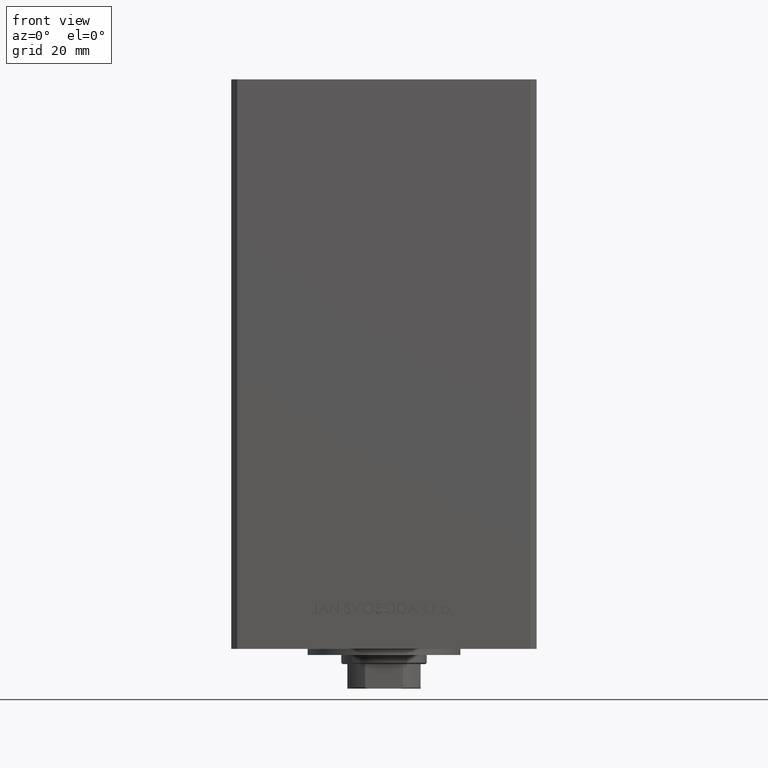
[diagram: clean part render]
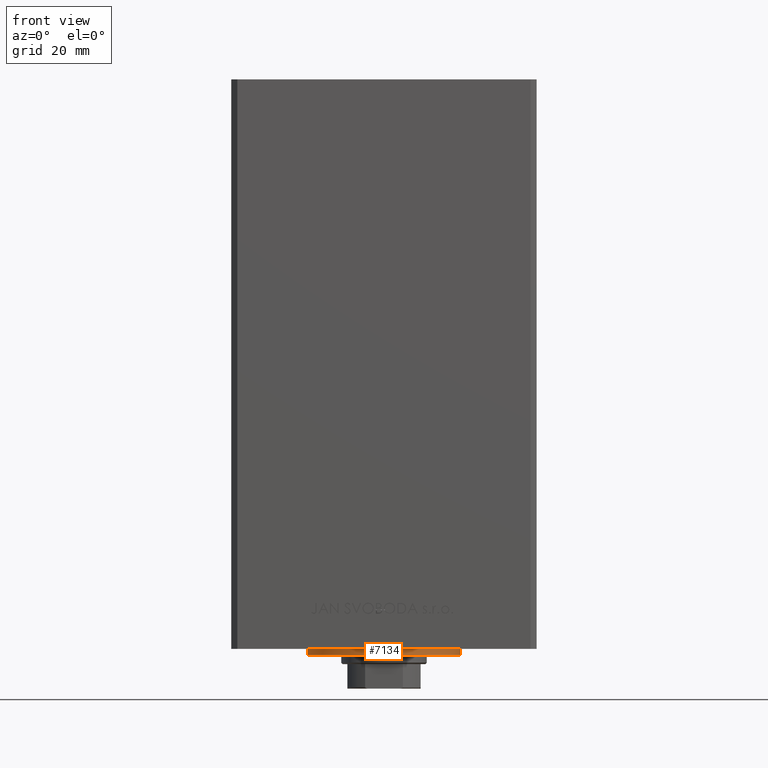
[diagram: same view with one face highlighted and labeled with its STEP entity id]
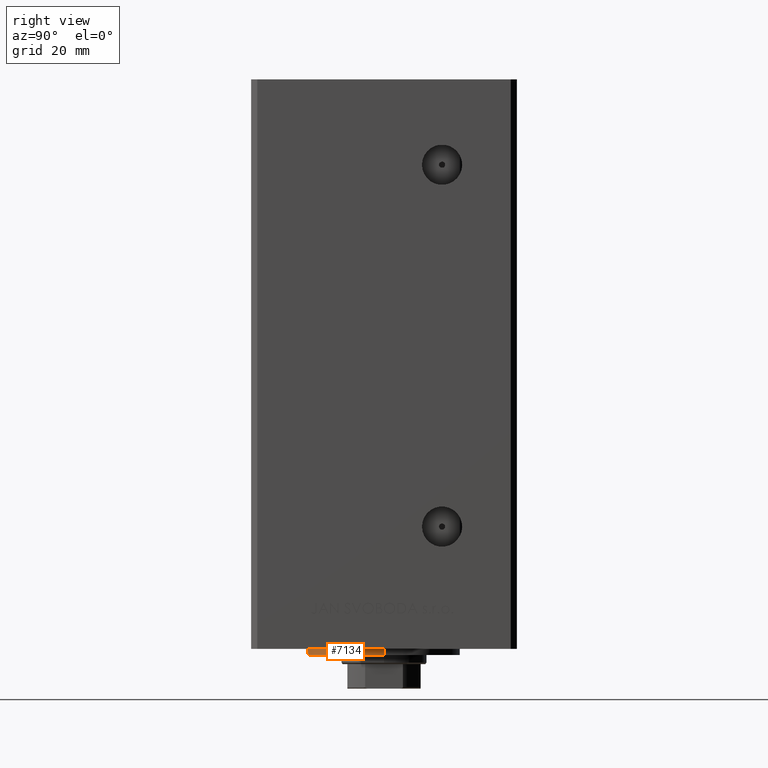
[diagram: same view with one face highlighted and labeled with its STEP entity id]
A machine part, front view. The second image highlights one B-rep face of the part: STEP entity #7134.
A second angle (right view) of the same face is appended — the face is thin or edge-on in the first view.
In plain terms, the highlighted cylindrical surface (partial cylindrical patch) has radius 25 mm, axis along (0, 0, 1).
Its self-contained STEP definition (entity closure, byte-faithful):
#956 = VERTEX_POINT ( 'NONE', #4636 ) ;
#1994 = EDGE_CURVE ( 'NONE', #10718, #15839, #9856, .T. ) ;
#2986 = EDGE_CURVE ( 'NONE', #25677, #18470, #38441, .T. ) ;
#3346 = EDGE_CURVE ( 'NONE', #14720, #10718, #44883, .T. ) ;
#3436 = EDGE_CURVE ( 'NONE', #956, #39834, #7996, .T. ) ;
#4636 = CARTESIAN_POINT ( 'NONE',  ( 0.000000000000000000, -25.00000000000000000, 0.000000000000000000 ) ) ;
#5546 = DIRECTION ( 'NONE',  ( -0.000000000000000000, -0.000000000000000000, -1.000000000000000000 ) ) ;
#7134 = ADVANCED_FACE ( 'NONE', ( #45893 ), #42364, .T. ) ;
#7996 = CIRCLE ( 'NONE', #34424, 25.00000000000000000 ) ;
#9300 = LINE ( 'NONE', #39916, #28744 ) ;
#9856 = LINE ( 'NONE', #48235, #43219 ) ;
#10266 = CIRCLE ( 'NONE', #28702, 25.00000000000000000 ) ;
#10656 = CARTESIAN_POINT ( 'NONE',  ( 0.000000000000000000, -6.938893903907228378E-15, 0.000000000000000000 ) ) ;
#10718 = VERTEX_POINT ( 'NONE', #33321 ) ;
#10727 = DIRECTION ( 'NONE',  ( 0.000000000000000000, 0.000000000000000000, 1.000000000000000000 ) ) ;
#11138 = DIRECTION ( 'NONE',  ( 1.000000000000000000, 0.000000000000000000, 0.000000000000000000 ) ) ;
#11193 = AXIS2_PLACEMENT_3D ( 'NONE', #10656, #33972, #11138 ) ;
#11331 = DIRECTION ( 'NONE',  ( 0.000000000000000000, 0.000000000000000000, 1.000000000000000000 ) ) ;
#14331 = ORIENTED_EDGE ( 'NONE', *, *, #3346, .F. ) ;
#14552 = DIRECTION ( 'NONE',  ( -1.000000000000000000, 0.000000000000000000, 0.000000000000000000 ) ) ;
#14720 = VERTEX_POINT ( 'NONE', #35044 ) ;
#15839 = VERTEX_POINT ( 'NONE', #26072 ) ;
#16675 = CIRCLE ( 'NONE', #22293, 25.00000000000000000 ) ;
#17391 = DIRECTION ( 'NONE',  ( -0.000000000000000000, -0.000000000000000000, -1.000000000000000000 ) ) ;
#18159 = ORIENTED_EDGE ( 'NONE', *, *, #3436, .T. ) ;
#18470 = VERTEX_POINT ( 'NONE', #32462 ) ;
#18510 = CARTESIAN_POINT ( 'NONE',  ( 0.000000000000000000, -6.938893903907228378E-15, 0.000000000000000000 ) ) ;
#20635 = DIRECTION ( 'NONE',  ( 0.000000000000000000, 0.000000000000000000, 1.000000000000000000 ) ) ;
#22293 = AXIS2_PLACEMENT_3D ( 'NONE', #43231, #20635, #32183 ) ;
#25677 = VERTEX_POINT ( 'NONE', #46553 ) ;
#26072 = CARTESIAN_POINT ( 'NONE',  ( 25.00000000000000000, -3.877276906038844941E-15, 0.000000000000000000 ) ) ;
#27374 = ORIENTED_EDGE ( 'NONE', *, *, #2986, .T. ) ;
#28614 = ORIENTED_EDGE ( 'NONE', *, *, #41410, .T. ) ;
#28702 = AXIS2_PLACEMENT_3D ( 'NONE', #43710, #32162, #47210 ) ;
#28744 = VECTOR ( 'NONE', #5546, 1000.000000000000000 ) ;
#30036 = ORIENTED_EDGE ( 'NONE', *, *, #1994, .F. ) ;
#32162 = DIRECTION ( 'NONE',  ( 0.000000000000000000, 0.000000000000000000, 1.000000000000000000 ) ) ;
#32183 = DIRECTION ( 'NONE',  ( 1.000000000000000000, 0.000000000000000000, 0.000000000000000000 ) ) ;
#32462 = CARTESIAN_POINT ( 'NONE',  ( -23.57022603955158502, -8.333333333333332149, 0.000000000000000000 ) ) ;
#32868 = AXIS2_PLACEMENT_3D ( 'NONE', #45168, #37626, #14552 ) ;
#33321 = CARTESIAN_POINT ( 'NONE',  ( 25.00000000000000000, -3.877276906038844941E-15, 2.000000000000000000 ) ) ;
#33913 = CARTESIAN_POINT ( 'NONE',  ( 0.000000000000000000, -6.938893903907228378E-15, 2.000000000000000000 ) ) ;
#33972 = DIRECTION ( 'NONE',  ( 0.000000000000000000, 0.000000000000000000, 1.000000000000000000 ) ) ;
#34424 = AXIS2_PLACEMENT_3D ( 'NONE', #18510, #10727, #39914 ) ;
#35044 = CARTESIAN_POINT ( 'NONE',  ( -25.00000000000000000, -6.938893903907228378E-15, 2.000000000000000000 ) ) ;
#35215 = AXIS2_PLACEMENT_3D ( 'NONE', #33913, #11331, #41942 ) ;
#35470 = EDGE_CURVE ( 'NONE', #18470, #956, #16675, .T. ) ;
#37626 = DIRECTION ( 'NONE',  ( -0.000000000000000000, -0.000000000000000000, -1.000000000000000000 ) ) ;
#38441 = CIRCLE ( 'NONE', #11193, 25.00000000000000000 ) ;
#39834 = VERTEX_POINT ( 'NONE', #44093 ) ;
#39914 = DIRECTION ( 'NONE',  ( 1.000000000000000000, 0.000000000000000000, 0.000000000000000000 ) ) ;
#39916 = CARTESIAN_POINT ( 'NONE',  ( -25.00000000000000000, -6.938893903907228378E-15, 2.000000000000000000 ) ) ;
#40389 = EDGE_CURVE ( 'NONE', #39834, #15839, #10266, .T. ) ;
#41410 = EDGE_CURVE ( 'NONE', #14720, #25677, #9300, .T. ) ;
#41942 = DIRECTION ( 'NONE',  ( 1.000000000000000000, 0.000000000000000000, 0.000000000000000000 ) ) ;
#42364 = CYLINDRICAL_SURFACE ( 'NONE', #32868, 25.00000000000000000 ) ;
#43219 = VECTOR ( 'NONE', #17391, 1000.000000000000000 ) ;
#43231 = CARTESIAN_POINT ( 'NONE',  ( 0.000000000000000000, -6.938893903907228378E-15, 0.000000000000000000 ) ) ;
#43710 = CARTESIAN_POINT ( 'NONE',  ( 0.000000000000000000, -6.938893903907228378E-15, 0.000000000000000000 ) ) ;
#44093 = CARTESIAN_POINT ( 'NONE',  ( 23.57022603955158502, -8.333333333333332149, 0.000000000000000000 ) ) ;
#44883 = CIRCLE ( 'NONE', #35215, 25.00000000000000000 ) ;
#45168 = CARTESIAN_POINT ( 'NONE',  ( 0.000000000000000000, -6.938893903907228378E-15, 2.000000000000000000 ) ) ;
#45893 = FACE_OUTER_BOUND ( 'NONE', #47671, .T. ) ;
#46553 = CARTESIAN_POINT ( 'NONE',  ( -25.00000000000000000, -6.938893903907228378E-15, 0.000000000000000000 ) ) ;
#47210 = DIRECTION ( 'NONE',  ( 1.000000000000000000, 0.000000000000000000, 0.000000000000000000 ) ) ;
#47523 = ORIENTED_EDGE ( 'NONE', *, *, #40389, .T. ) ;
#47671 = EDGE_LOOP ( 'NONE', ( #30036, #14331, #28614, #27374, #47875, #18159, #47523 ) ) ;
#47875 = ORIENTED_EDGE ( 'NONE', *, *, #35470, .T. ) ;
#48235 = CARTESIAN_POINT ( 'NONE',  ( 25.00000000000000000, -3.877276906038844941E-15, 2.000000000000000000 ) ) ;